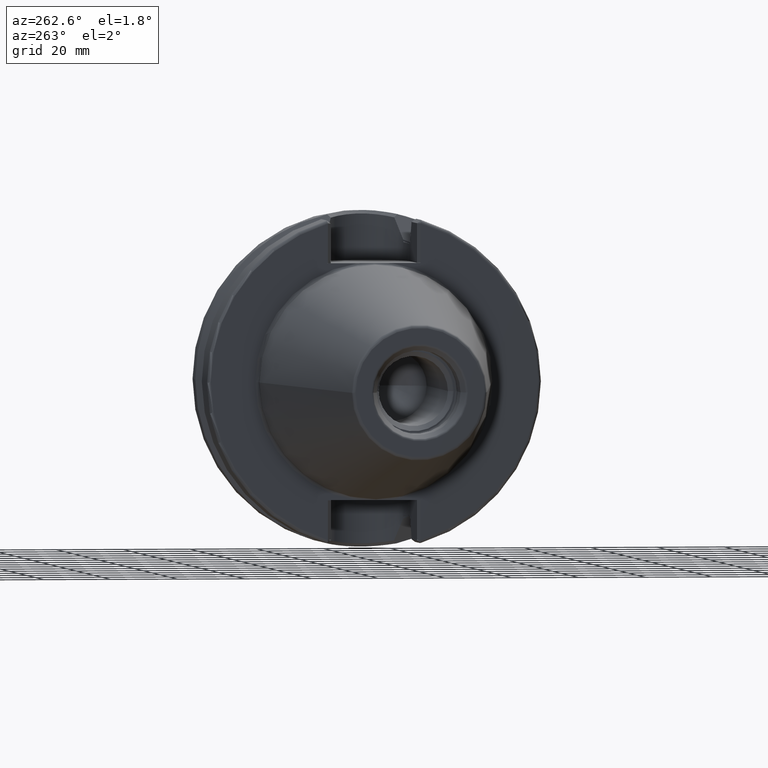
[diagram: clean part render]
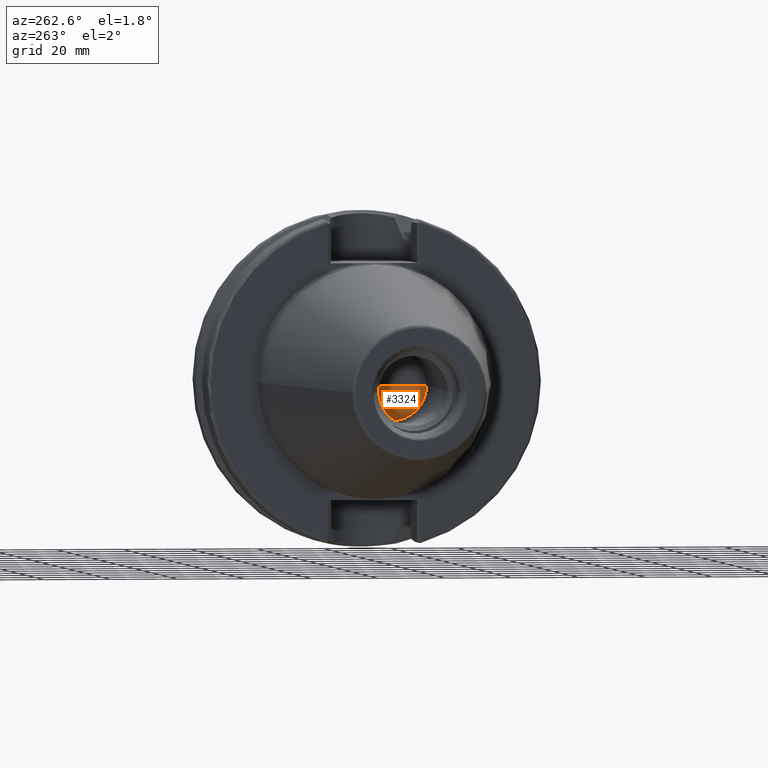
[diagram: same view with one face highlighted and labeled with its STEP entity id]
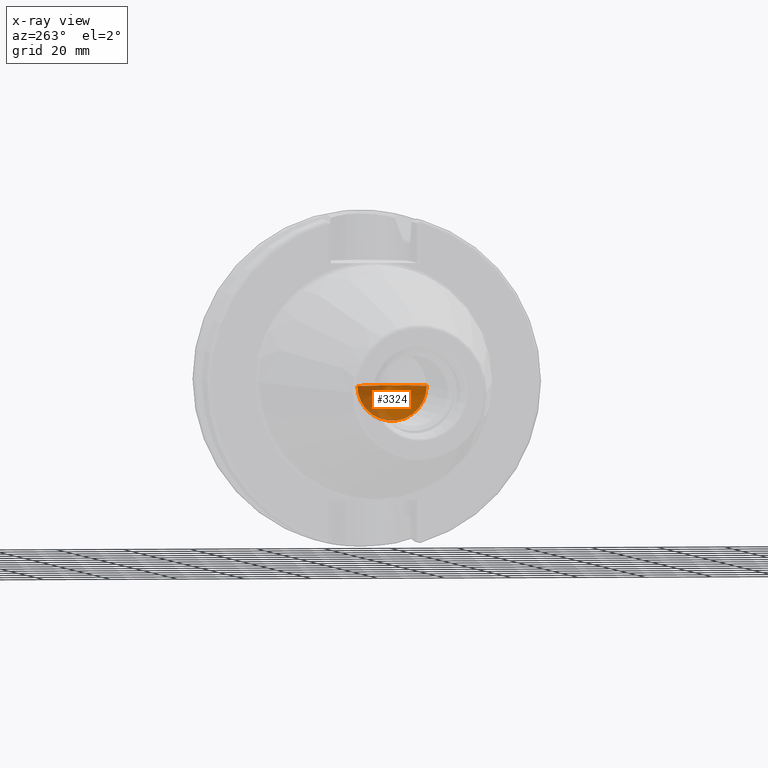
[diagram: x-ray of the same camera — body ghosted, the highlighted face saturated]
A machine part, auxiliary view. The second image highlights one B-rep face of the part: STEP entity #3324.
The next image is the same camera in x-ray: the body ghosted, the highlighted face saturated — about 33% of this face is hidden behind the body in this view.
In plain terms, the highlighted conical surface has half-angle 59 deg.
Its self-contained STEP definition (entity closure, byte-faithful):
#1281=CARTESIAN_POINT('',(-3.78E1,0.E0,0.E0));
#1282=DIRECTION('',(-1.E0,0.E0,0.E0));
#1283=DIRECTION('',(0.E0,1.E0,0.E0));
#1284=AXIS2_PLACEMENT_3D('',#1281,#1282,#1283);
#1295=DIRECTION('',(-5.150380749101E-1,8.571673007021E-1,0.E0));
#1296=VECTOR('',#1295,1.210382149611E1);
#1297=CARTESIAN_POINT('',(-3.156607107759E1,0.E0,0.E0));
#1298=LINE('',#1297,#1296);
#1299=DIRECTION('',(-5.150380749101E-1,-8.571673007021E-1,0.E0));
#1300=VECTOR('',#1299,1.210382149611E1);
#1301=CARTESIAN_POINT('',(-3.156607107759E1,0.E0,0.E0));
#1302=LINE('',#1301,#1300);
#1387=CARTESIAN_POINT('',(-3.156607107759E1,0.E0,0.E0));
#1388=CARTESIAN_POINT('',(-3.78E1,1.0375E1,0.E0));
#1389=VERTEX_POINT('',#1387);
#1390=VERTEX_POINT('',#1388);
#1411=CARTESIAN_POINT('',(-3.78E1,-1.0375E1,0.E0));
#1412=VERTEX_POINT('',#1411);
#3314=CARTESIAN_POINT('',(-3.468303553879E1,0.E0,0.E0));
#3315=DIRECTION('',(-1.E0,0.E0,0.E0));
#3316=DIRECTION('',(0.E0,1.E0,0.E0));
#3317=AXIS2_PLACEMENT_3D('',#3314,#3315,#3316);
#3318=CONICAL_SURFACE('',#3317,5.1875E0,5.9E1);
#3319=ORIENTED_EDGE('',*,*,#3306,.F.);
#3320=ORIENTED_EDGE('',*,*,#3309,.T.);
#3321=ORIENTED_EDGE('',*,*,#3280,.F.);
#3322=EDGE_LOOP('',(#3319,#3320,#3321));
#3323=FACE_OUTER_BOUND('',#3322,.F.);
#3324=ADVANCED_FACE('',(#3323),#3318,.F.);
#1285=CIRCLE('',#1284,1.0375E1);
#3280=EDGE_CURVE('',#1390,#1412,#1285,.T.);
#3306=EDGE_CURVE('',#1389,#1390,#1298,.T.);
#3309=EDGE_CURVE('',#1389,#1412,#1302,.T.);